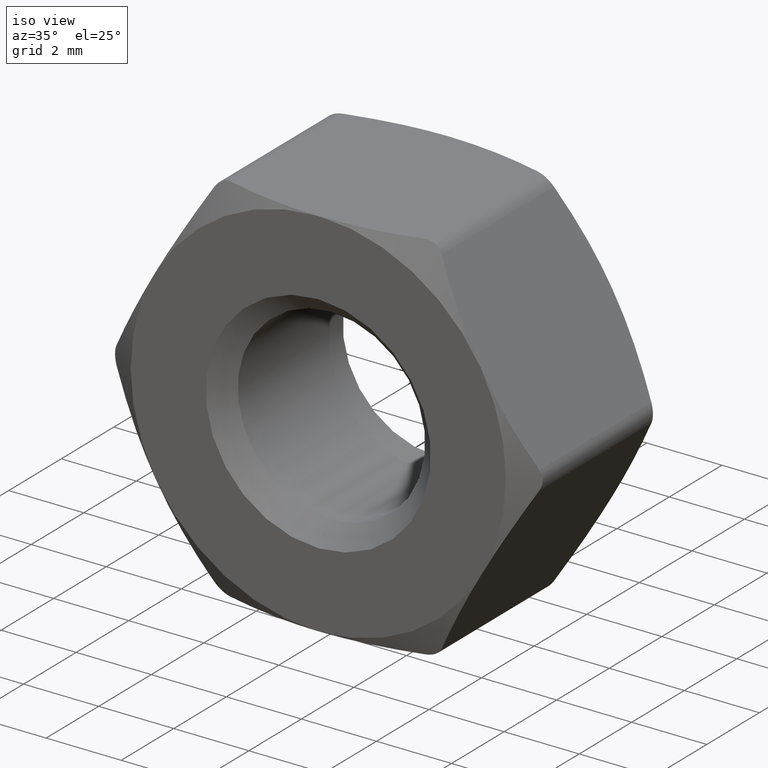
[diagram: clean part render]
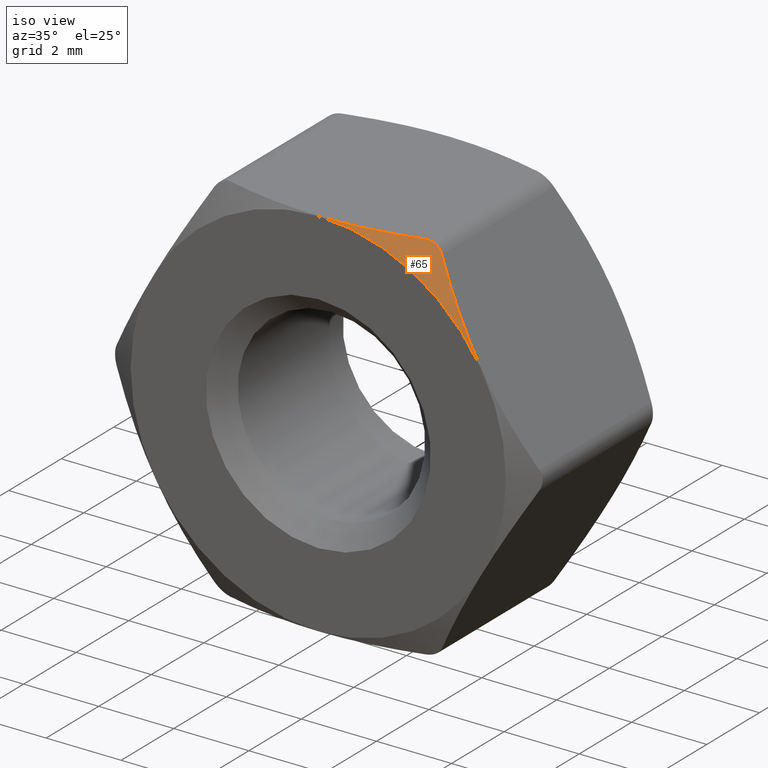
[diagram: same view with one face highlighted and labeled with its STEP entity id]
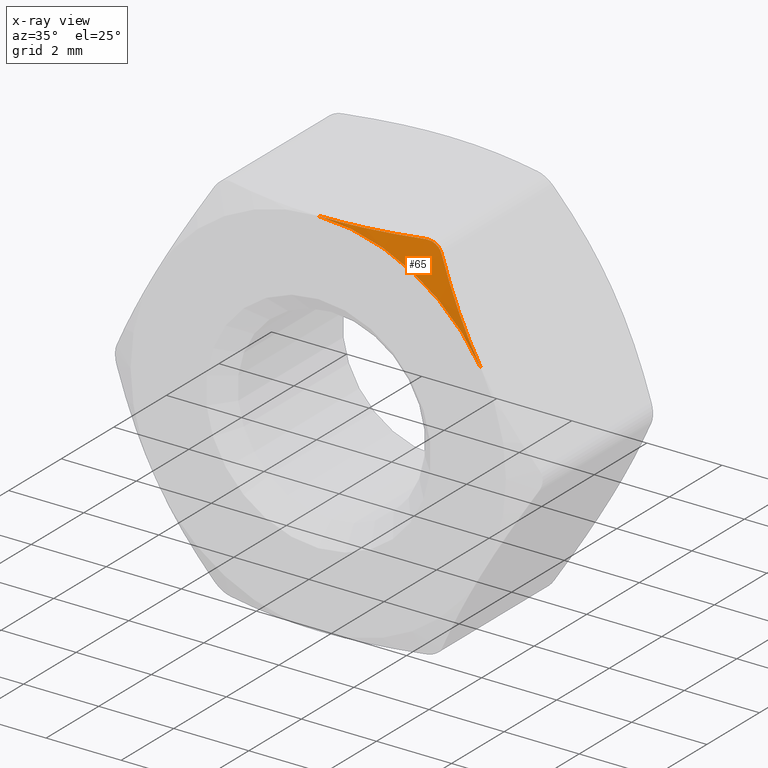
[diagram: x-ray of the same camera — body ghosted, the highlighted face saturated]
A machine part, iso view. The second image highlights one B-rep face of the part: STEP entity #65.
The next image is the same camera in x-ray: the body ghosted, the highlighted face saturated — about 0% of this face is hidden behind the body in this view.
In plain terms, the highlighted conical surface has half-angle 60 deg.
Its self-contained STEP definition (entity closure, byte-faithful):
#57 = CARTESIAN_POINT ( 'NONE',  ( 2.988078037752640400, -2.110648208416782800, 4.824497021631724000 ) ) ;
#65 = ADVANCED_FACE ( 'NONE', ( #1155 ), #164, .T. ) ;
#93 = VERTEX_POINT ( 'NONE', #744 ) ;
#98 = CARTESIAN_POINT ( 'NONE',  ( -3.386450907888040000E-016, -2.499999999999999600, 4.999999999999999100 ) ) ;
#103 = CIRCLE ( 'NONE', #703, 4.999999999999999100 ) ;
#164 = CONICAL_SURFACE ( 'NONE', #176, 4.999999999999999100, 1.047197551196604100 ) ;
#176 = AXIS2_PLACEMENT_3D ( 'NONE', #1336, #1505, #1374 ) ;
#219 = CARTESIAN_POINT ( 'NONE',  ( 3.888340324045457000, -2.500000000000000000, 3.265197001634443800 ) ) ;
#250 = CARTESIAN_POINT ( 'NONE',  ( 2.176897922532178100, -2.245668385487330300, 4.999999999999999100 ) ) ;
#331 = CARTESIAN_POINT ( 'NONE',  ( 2.924610477300873000, -2.098116676514131500, 4.888736905002410500 ) ) ;
#510 = CARTESIAN_POINT ( 'NONE',  ( 2.598076211353321300, -2.133547796624276400, 4.999999999999999100 ) ) ;
#546 = EDGE_CURVE ( 'NONE', #1436, #831, #1094, .T. ) ;
#551 = VERTEX_POINT ( 'NONE', #1296 ) ;
#600 = CARTESIAN_POINT ( 'NONE',  ( -3.386450907888040000E-016, -2.499999999999999600, 4.999999999999999100 ) ) ;
#607 = ORIENTED_EDGE ( 'NONE', *, *, #546, .F. ) ;
#614 = EDGE_CURVE ( 'NONE', #93, #1436, #103, .T. ) ;
#615 = CARTESIAN_POINT ( 'NONE',  ( 3.456602734153867200, -2.360097271922223500, 4.012988442864014800 ) ) ;
#695 = EDGE_LOOP ( 'NONE', ( #1658, #1066, #607, #1313 ) ) ;
#703 = AXIS2_PLACEMENT_3D ( 'NONE', #1427, #749, #891 ) ;
#729 = CARTESIAN_POINT ( 'NONE',  ( 3.031088913243837400, -2.133547796623369100, 4.750000000002950500 ) ) ;
#744 = CARTESIAN_POINT ( 'NONE',  ( 4.330127018922192800, -2.500000000000000000, 2.500000000000000400 ) ) ;
#749 = DIRECTION ( 'NONE',  ( -1.354580363155216500E-016, -1.000000000000000000, -0.0000000000000000000 ) ) ;
#764 = CARTESIAN_POINT ( 'NONE',  ( 0.4379327334247492500, -2.499999999999999100, 4.999999999999999100 ) ) ;
#800 = B_SPLINE_CURVE_WITH_KNOTS ( 'NONE', 3,
 ( #729, #615, #219, #1654 ),
 .UNSPECIFIED., .F., .F.,
 ( 4, 4 ),
 ( 0.0002973740778378684100, 0.002921158011986707300 ),
 .UNSPECIFIED. ) ;
#831 = VERTEX_POINT ( 'NONE', #510 ) ;
#891 = DIRECTION ( 'NONE',  ( 1.000000000000000000, -1.734723475976807300E-016, 0.0000000000000000000 ) ) ;
#1066 = ORIENTED_EDGE ( 'NONE', *, *, #1631, .T. ) ;
#1094 = B_SPLINE_CURVE_WITH_KNOTS ( 'NONE', 3,
 ( #98, #764, #1415, #1673, #250, #1166 ),
 .UNSPECIFIED., .F., .F.,
 ( 4, 2, 4 ),
 ( 0.008070708573309187700, 0.009381581822669526200, 0.01069245507202986600 ),
 .UNSPECIFIED. ) ;
#1155 = FACE_OUTER_BOUND ( 'NONE', #695, .T. ) ;
#1166 = CARTESIAN_POINT ( 'NONE',  ( 2.598076211353321300, -2.133547796624276400, 4.999999999999999100 ) ) ;
#1212 = B_SPLINE_CURVE_WITH_KNOTS ( 'NONE', 3,
 ( #1498, #57, #331, #1510, #1235, #1630 ),
 .UNSPECIFIED., .F., .F.,
 ( 4, 2, 4 ),
 ( 3.308391038941997800E-015, 0.0002635016616933985000, 0.0005270033233834886700 ),
 .UNSPECIFIED. ) ;
#1235 = CARTESIAN_POINT ( 'NONE',  ( 2.684125924131248700, -2.110640764794212500, 5.000000000000000000 ) ) ;
#1296 = CARTESIAN_POINT ( 'NONE',  ( 3.031088913243837400, -2.133547796623369100, 4.750000000002950500 ) ) ;
#1313 = ORIENTED_EDGE ( 'NONE', *, *, #614, .F. ) ;
#1336 = CARTESIAN_POINT ( 'NONE',  ( -3.386450907888040500E-016, -2.499999999999999600, 0.0000000000000000000 ) ) ;
#1374 = DIRECTION ( 'NONE',  ( 1.000000000000000000, -1.734723475976807300E-016, 0.0000000000000000000 ) ) ;
#1415 = CARTESIAN_POINT ( 'NONE',  ( 0.8816963457451881800, -2.465507977430364800, 4.999999999999999100 ) ) ;
#1424 = EDGE_CURVE ( 'NONE', #551, #93, #800, .T. ) ;
#1427 = CARTESIAN_POINT ( 'NONE',  ( -3.386450907888040500E-016, -2.499999999999999600, 0.0000000000000000000 ) ) ;
#1436 = VERTEX_POINT ( 'NONE', #600 ) ;
#1498 = CARTESIAN_POINT ( 'NONE',  ( 3.031088913243837400, -2.133547796623369100, 4.750000000002950500 ) ) ;
#1505 = DIRECTION ( 'NONE',  ( 1.354580363155216500E-016, 1.000000000000000000, 0.0000000000000000000 ) ) ;
#1510 = CARTESIAN_POINT ( 'NONE',  ( 2.772296152498301400, -2.098035946016742100, 4.976852619009478400 ) ) ;
#1630 = CARTESIAN_POINT ( 'NONE',  ( 2.598076211353321300, -2.133547796624276400, 4.999999999999999100 ) ) ;
#1631 = EDGE_CURVE ( 'NONE', #551, #831, #1212, .T. ) ;
#1654 = CARTESIAN_POINT ( 'NONE',  ( 4.330127018922192800, -2.500000000000000000, 2.500000000000000400 ) ) ;
#1658 = ORIENTED_EDGE ( 'NONE', *, *, #1424, .F. ) ;
#1673 = CARTESIAN_POINT ( 'NONE',  ( 1.750304367260596900, -2.337862729513274600, 4.999999999999997300 ) ) ;